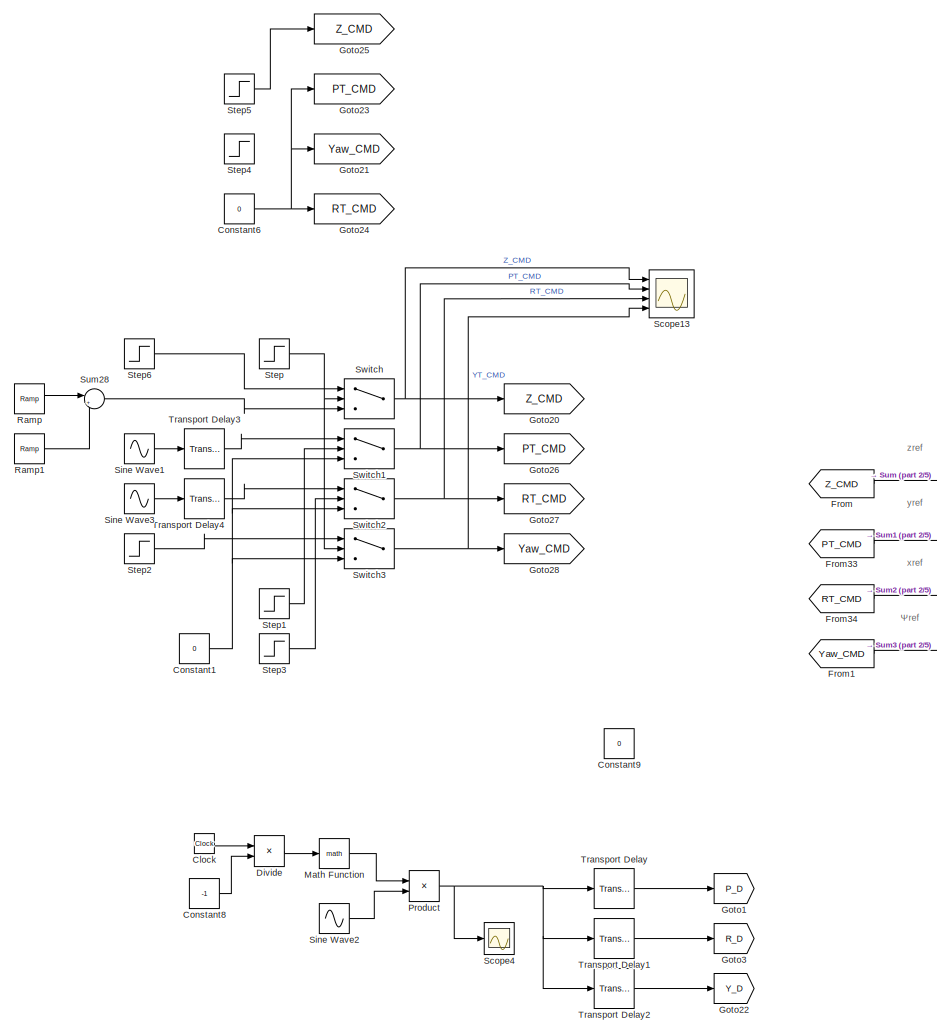
[diagram: root canvas - part 1/5, top left region]
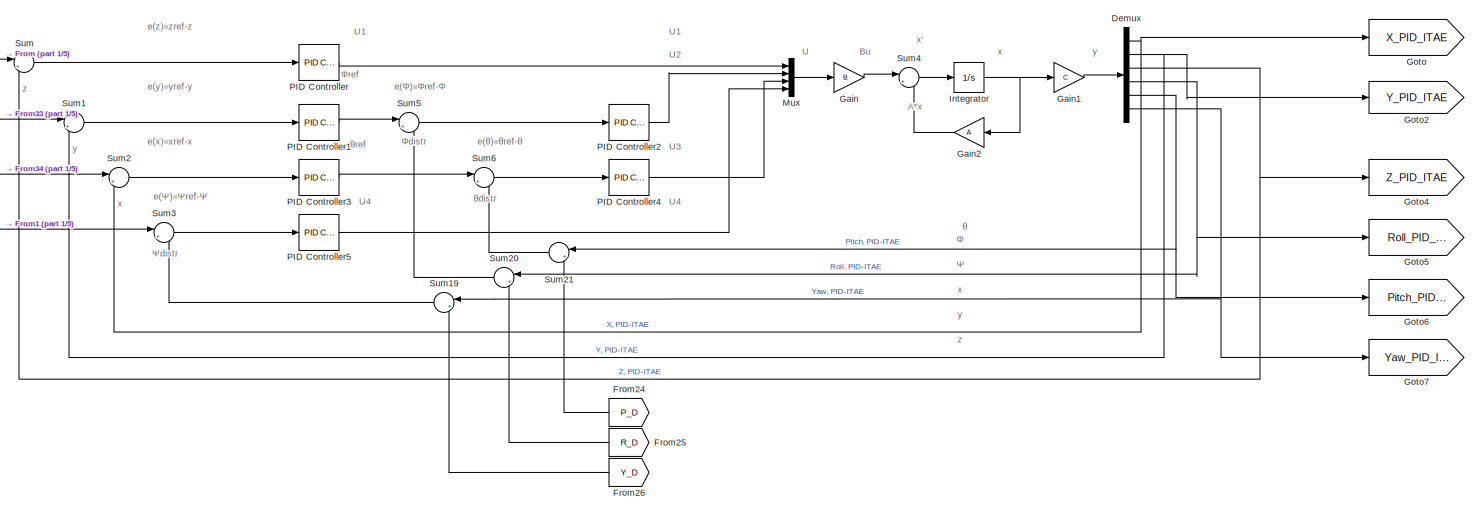
[diagram: root canvas - part 2/5, top center region]
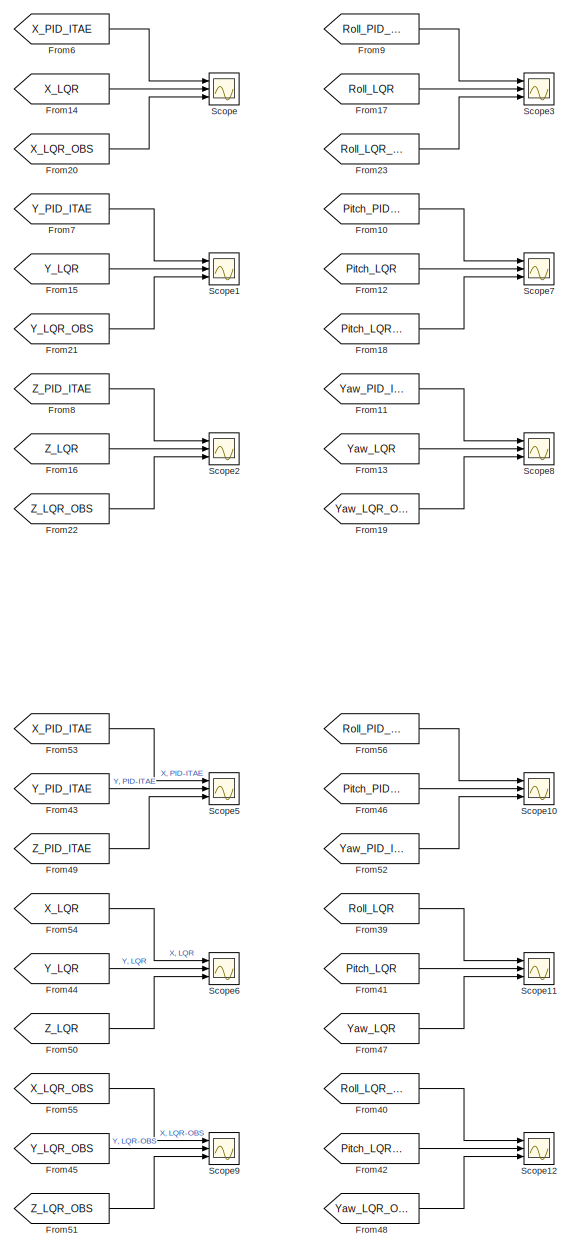
[diagram: root canvas - part 3/5, middle right region]
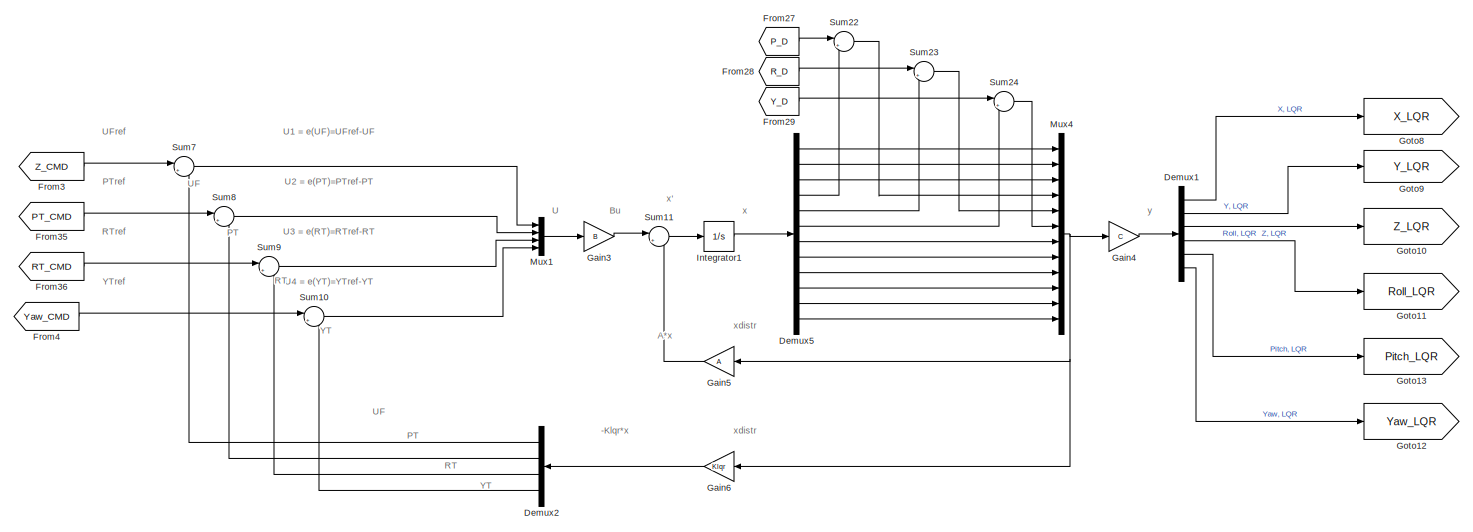
[diagram: root canvas - part 4/5, central region]
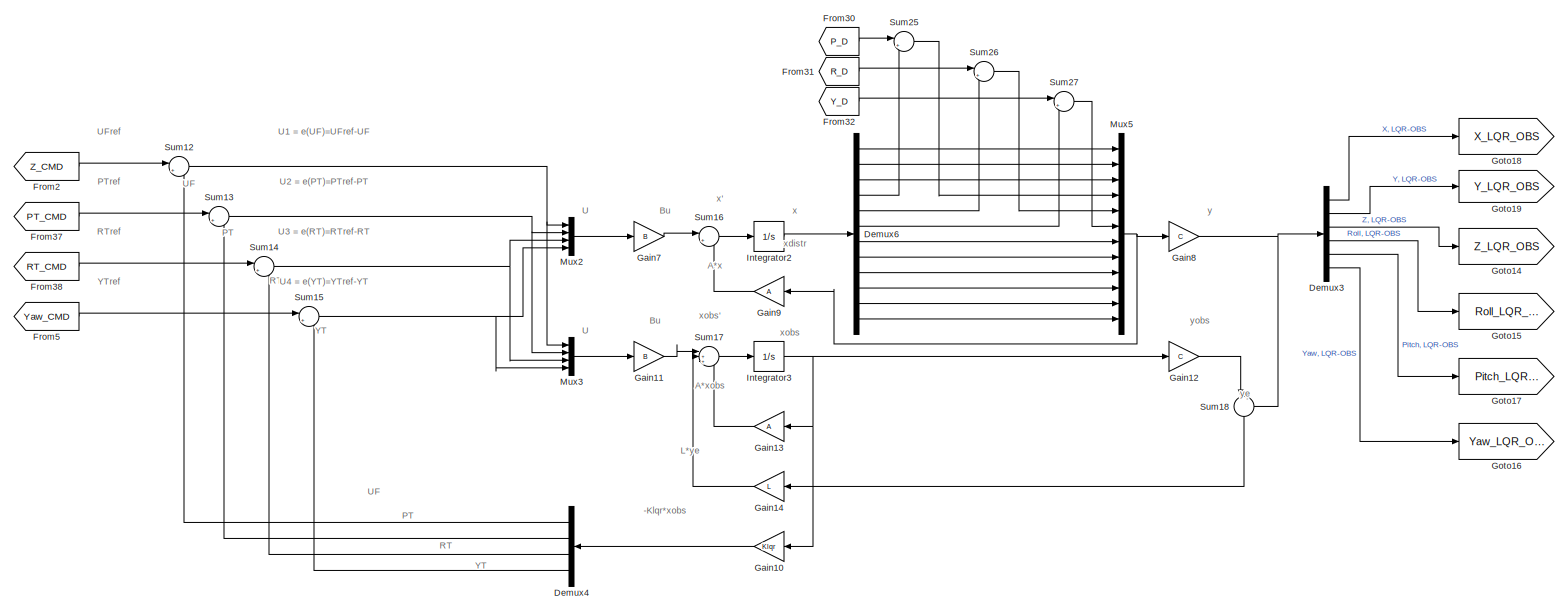
[diagram: root canvas - part 5/5, bottom center region]
MODEL slx_bced7e420a27
KIND model
CONFIG AbsTol = auto
CONFIG EnableMultiTasking = off
CONFIG FixedStep = auto
CONFIG MaxStep = auto
CONFIG MinStep = auto
CONFIG RelTol = 1e-3
CONFIG SampleTimeConstraint = Unconstrained
CONFIG SolverName = VariableStepAuto
CONFIG StartTime = 0.0
CONFIG StopTime = 130
BLOCK [Clock] Clock
BLOCK [Constant] Constant1
  Value = 0
BLOCK [Constant] Constant6
  Commented = on
  Value = 0
BLOCK [Constant] Constant8
  SampleTime = -1
  Value = -1
BLOCK [Constant] Constant9
  Value = 0
BLOCK [Demux] Demux
  Outputs = 6
  Ports = [1, 6]
BLOCK [Demux] Demux1
  Outputs = 6
  Ports = [1, 6]
BLOCK [Demux] Demux2
  Ports = [1, 4]
BLOCK [Demux] Demux3
  Outputs = 6
  Ports = [1, 6]
BLOCK [Demux] Demux4
  Ports = [1, 4]
BLOCK [Demux] Demux5
  Outputs = 12
  Ports = [1, 12]
BLOCK [Demux] Demux6
  Outputs = 12
  Ports = [1, 12]
BLOCK [Product] Divide
  Inputs = */
  Ports = [2, 1]
BLOCK [From] From
  GotoTag = Z_CMD
BLOCK [From] From1
  GotoTag = Yaw_CMD
BLOCK [From] From10
  Commented = on
  GotoTag = Pitch_PID_ITAE
BLOCK [From] From11
  Commented = on
  GotoTag = Yaw_PID_ITAE
BLOCK [From] From12
  Commented = on
  GotoTag = Pitch_LQR
BLOCK [From] From13
  Commented = on
  GotoTag = Yaw_LQR
BLOCK [From] From14
  Commented = on
  GotoTag = X_LQR
BLOCK [From] From15
  Commented = on
  GotoTag = Y_LQR
BLOCK [From] From16
  Commented = on
  GotoTag = Z_LQR
BLOCK [From] From17
  Commented = on
  GotoTag = Roll_LQR
BLOCK [From] From18
  Commented = on
  GotoTag = Pitch_LQR_OBS
BLOCK [From] From19
  Commented = on
  GotoTag = Yaw_LQR_OBS
BLOCK [From] From2
  GotoTag = Z_CMD
BLOCK [From] From20
  Commented = on
  GotoTag = X_LQR_OBS
BLOCK [From] From21
  Commented = on
  GotoTag = Y_LQR_OBS
BLOCK [From] From22
  Commented = on
  GotoTag = Z_LQR_OBS
BLOCK [From] From23
  Commented = on
  GotoTag = Roll_LQR_OBS
BLOCK [From] From24
  GotoTag = P_D
BLOCK [From] From25
  GotoTag = R_D
BLOCK [From] From26
  GotoTag = Y_D
BLOCK [From] From27
  GotoTag = P_D
BLOCK [From] From28
  GotoTag = R_D
BLOCK [From] From29
  GotoTag = Y_D
BLOCK [From] From3
  GotoTag = Z_CMD
BLOCK [From] From30
  GotoTag = P_D
BLOCK [From] From31
  GotoTag = R_D
BLOCK [From] From32
  GotoTag = Y_D
BLOCK [From] From33
  GotoTag = PT_CMD
BLOCK [From] From34
  GotoTag = RT_CMD
BLOCK [From] From35
  GotoTag = PT_CMD
BLOCK [From] From36
  GotoTag = RT_CMD
BLOCK [From] From37
  GotoTag = PT_CMD
BLOCK [From] From38
  GotoTag = RT_CMD
BLOCK [From] From39
  GotoTag = Roll_LQR
BLOCK [From] From4
  GotoTag = Yaw_CMD
BLOCK [From] From40
  GotoTag = Roll_LQR_OBS
BLOCK [From] From41
  GotoTag = Pitch_LQR
BLOCK [From] From42
  GotoTag = Pitch_LQR_OBS
BLOCK [From] From43
  GotoTag = Y_PID_ITAE
BLOCK [From] From44
  GotoTag = Y_LQR
BLOCK [From] From45
  GotoTag = Y_LQR_OBS
BLOCK [From] From46
  GotoTag = Pitch_PID_ITAE
BLOCK [From] From47
  GotoTag = Yaw_LQR
BLOCK [From] From48
  GotoTag = Yaw_LQR_OBS
BLOCK [From] From49
  GotoTag = Z_PID_ITAE
BLOCK [From] From5
  GotoTag = Yaw_CMD
BLOCK [From] From50
  GotoTag = Z_LQR
BLOCK [From] From51
  GotoTag = Z_LQR_OBS
BLOCK [From] From52
  GotoTag = Yaw_PID_ITAE
BLOCK [From] From53
  GotoTag = X_PID_ITAE
BLOCK [From] From54
  GotoTag = X_LQR
BLOCK [From] From55
  GotoTag = X_LQR_OBS
BLOCK [From] From56
  GotoTag = Roll_PID_ITAE
BLOCK [From] From6
  Commented = on
  GotoTag = X_PID_ITAE
BLOCK [From] From7
  Commented = on
  GotoTag = Y_PID_ITAE
BLOCK [From] From8
  Commented = on
  GotoTag = Z_PID_ITAE
BLOCK [From] From9
  Commented = on
  GotoTag = Roll_PID_ITAE
BLOCK [Gain] Gain
  AttributesFormatString = State-Space B*u
  Gain = B
  Multiplication = Matrix(K*u)
BLOCK [Gain] Gain1
  AttributesFormatString = State-Space C*x
  Gain = C
  Multiplication = Matrix(K*u)
BLOCK [Gain] Gain10
  AttributesFormatString = LQR Feedback Gain,\nAugmented States
  Gain = Klqr
  Multiplication = Matrix(K*u)
BLOCK [Gain] Gain11
  AttributesFormatString = State-Space B*u
  Gain = B
  Multiplication = Matrix(K*u)
BLOCK [Gain] Gain12
  AttributesFormatString = Augmented\nState-Space C*x
  Gain = C
  Multiplication = Matrix(K*u)
BLOCK [Gain] Gain13
  AttributesFormatString = Augmented\nState-Space A*x
  Gain = A
  Multiplication = Matrix(K*u)
BLOCK [Gain] Gain14
  AttributesFormatString = L*y_e
  Gain = L
  Multiplication = Matrix(K*u)
BLOCK [Gain] Gain2
  AttributesFormatString = State-Space A*x
  Gain = A
  Multiplication = Matrix(K*u)
BLOCK [Gain] Gain3
  AttributesFormatString = State-Space B*u
  Gain = B
  Multiplication = Matrix(K*u)
BLOCK [Gain] Gain4
  AttributesFormatString = State-Space C*x
  Gain = C
  Multiplication = Matrix(K*u)
BLOCK [Gain] Gain5
  AttributesFormatString = State-Space A*x
  Gain = A
  Multiplication = Matrix(K*u)
BLOCK [Gain] Gain6
  AttributesFormatString = LQR Feeback Gain
  Gain = Klqr
  Multiplication = Matrix(K*u)
BLOCK [Gain] Gain7
  AttributesFormatString = State-Space B*u
  Gain = B
  Multiplication = Matrix(K*u)
BLOCK [Gain] Gain8
  AttributesFormatString = State-Space C*x
  Gain = C
  Multiplication = Matrix(K*u)
BLOCK [Gain] Gain9
  AttributesFormatString = State-Space A*x
  Gain = A
  Multiplication = Matrix(K*u)
BLOCK [Goto] Goto
  GotoTag = X_PID_ITAE
BLOCK [Goto] Goto1
  GotoTag = P_D
BLOCK [Goto] Goto10
  GotoTag = Z_LQR
BLOCK [Goto] Goto11
  GotoTag = Roll_LQR
BLOCK [Goto] Goto12
  GotoTag = Yaw_LQR
BLOCK [Goto] Goto13
  GotoTag = Pitch_LQR
BLOCK [Goto] Goto14
  GotoTag = Z_LQR_OBS
BLOCK [Goto] Goto15
  GotoTag = Roll_LQR_OBS
BLOCK [Goto] Goto16
  GotoTag = Yaw_LQR_OBS
BLOCK [Goto] Goto17
  GotoTag = Pitch_LQR_OBS
BLOCK [Goto] Goto18
  GotoTag = X_LQR_OBS
BLOCK [Goto] Goto19
  GotoTag = Y_LQR_OBS
BLOCK [Goto] Goto2
  GotoTag = Y_PID_ITAE
BLOCK [Goto] Goto20
  GotoTag = Z_CMD
BLOCK [Goto] Goto21
  Commented = on
  GotoTag = Yaw_CMD
BLOCK [Goto] Goto22
  GotoTag = Y_D
BLOCK [Goto] Goto23
  Commented = on
  GotoTag = PT_CMD
BLOCK [Goto] Goto24
  Commented = on
  GotoTag = RT_CMD
BLOCK [Goto] Goto25
  Commented = on
  GotoTag = Z_CMD
BLOCK [Goto] Goto26
  GotoTag = PT_CMD
BLOCK [Goto] Goto27
  GotoTag = RT_CMD
BLOCK [Goto] Goto28
  GotoTag = Yaw_CMD
BLOCK [Goto] Goto3
  GotoTag = R_D
BLOCK [Goto] Goto4
  GotoTag = Z_PID_ITAE
BLOCK [Goto] Goto5
  GotoTag = Roll_PID_ITAE
BLOCK [Goto] Goto6
  GotoTag = Pitch_PID_ITAE
BLOCK [Goto] Goto7
  GotoTag = Yaw_PID_ITAE
BLOCK [Goto] Goto8
  GotoTag = X_LQR
BLOCK [Goto] Goto9
  GotoTag = Y_LQR
BLOCK [Integrator] Integrator
  AttributesFormatString = Extract Current States
  Ports = [1, 1]
BLOCK [Integrator] Integrator1
  AttributesFormatString = Extract Current States
  Ports = [1, 1]
BLOCK [Integrator] Integrator2
  AttributesFormatString = Extract Current States
  Ports = [1, 1]
BLOCK [Integrator] Integrator3
  AttributesFormatString = Extract Current\nAugmented States
  Ports = [1, 1]
BLOCK [Math] Math Function
  Ports = [1, 1]
BLOCK [Mux] Mux
  DisplayOption = bar
  Ports = [4, 1]
BLOCK [Mux] Mux1
  DisplayOption = bar
  Ports = [4, 1]
BLOCK [Mux] Mux2
  DisplayOption = bar
  Ports = [4, 1]
BLOCK [Mux] Mux3
  DisplayOption = bar
  Ports = [4, 1]
BLOCK [Mux] Mux4
  DisplayOption = bar
  Inputs = 12
  Ports = [12, 1]
BLOCK [Mux] Mux5
  DisplayOption = bar
  Inputs = 12
  Ports = [12, 1]
BLOCK [Reference] PID Controller  REF=slpidlib/PID Controller
  AttributesFormatString = U1 Controller
  Ports = [1, 1]
  SourceBlock = slpidlib/PID Controller
  SourceProductBaseCode = SL
  SourceType = PID 1dof
BLOCK [Reference] PID Controller1  REF=slpidlib/PID Controller
  AttributesFormatString = Φref Generation
  Ports = [1, 1]
  SourceBlock = slpidlib/PID Controller
  SourceProductBaseCode = SL
  SourceType = PID 1dof
BLOCK [Reference] PID Controller2  REF=slpidlib/PID Controller
  AttributesFormatString = U2 Controller
  Ports = [1, 1]
  SourceBlock = slpidlib/PID Controller
  SourceProductBaseCode = SL
  SourceType = PID 1dof
BLOCK [Reference] PID Controller3  REF=slpidlib/PID Controller
  AttributesFormatString = θref Generation
  Ports = [1, 1]
  SourceBlock = slpidlib/PID Controller
  SourceProductBaseCode = SL
  SourceType = PID 1dof
BLOCK [Reference] PID Controller4  REF=slpidlib/PID Controller
  AttributesFormatString = U3 Controller
  Ports = [1, 1]
  SourceBlock = slpidlib/PID Controller
  SourceProductBaseCode = SL
  SourceType = PID 1dof
BLOCK [Reference] PID Controller5  REF=slpidlib/PID Controller
  AttributesFormatString = U4 Controller
  Ports = [1, 1]
  SourceBlock = slpidlib/PID Controller
  SourceProductBaseCode = SL
  SourceType = PID 1dof
BLOCK [Product] Product
  Ports = [2, 1]
BLOCK [Reference] Ramp  REF=simulink/Sources/Ramp
  Ports = [0, 1]
  SourceBlock = simulink/Sources/Ramp
  SourceProductBaseCode = SL
  SourceType = Ramp
BLOCK [Reference] Ramp1  REF=simulink/Sources/Ramp
  Ports = [0, 1]
  SourceBlock = simulink/Sources/Ramp
  SourceProductBaseCode = SL
  SourceType = Ramp
BLOCK [Scope] Scope
  AttributesFormatString = Quadcopter X-Position\nOutputs
  Commented = on
  Floating = off
  NumInputPorts = 3
  Ports = [3]
  ScopeSpecificationString = Simulink.scopes.TimeScopeBlockCfg('CurrentConfiguration', extmgr.ConfigurationSet(extmgr.Configuration('Core','General UI',true,'FigureColor',[1 1 1]),extmgr.Configuration('Core','Source UI',true),extmgr.Configuration('Sources','WiredSimulink',true,'DataLoggingVariableName','ScopeData1'),extmgr.Configuration('Visuals','Time Domain',true,'SerializedDisplays',{struct('MinYLimReal','-0.00000000000000...<+1971ch>
BLOCK [Scope] Scope1
  AttributesFormatString = Quadcopter Y-Position\nOutputs
  Commented = on
  Floating = off
  NumInputPorts = 3
  Ports = [3]
  ScopeSpecificationString = Simulink.scopes.TimeScopeBlockCfg('CurrentConfiguration', extmgr.ConfigurationSet(extmgr.Configuration('Core','General UI',true,'FigureColor',[1 1 1]),extmgr.Configuration('Core','Source UI',true),extmgr.Configuration('Sources','WiredSimulink',true),extmgr.Configuration('Visuals','Time Domain',true,'SerializedDisplays',{struct('MinYLimReal','-557468517.56897','MaxYLimReal','493910341.92572','YLabe...<+1906ch>
BLOCK [Scope] Scope10
  AttributesFormatString = Quadcopter\nPID-ITAE Euler Angles
  Floating = off
  NumInputPorts = 3
  Ports = [3]
  ScopeSpecificationString = Simulink.scopes.TimeScopeBlockCfg('CurrentConfiguration', extmgr.ConfigurationSet(extmgr.Configuration('Core','General UI',true,'FigureColor',[1 1 1]),extmgr.Configuration('Core','Source UI',true),extmgr.Configuration('Sources','WiredSimulink',true,'DataLoggingVariableName','ScopeData2'),extmgr.Configuration('Visuals','Time Domain',true,'SerializedDisplays',{struct('MinYLimReal','-3.1416','MaxYLim...<+1930ch>
BLOCK [Scope] Scope11
  AttributesFormatString = Quadcopter\nLQR Euler Angles
  Floating = off
  NumInputPorts = 3
  Ports = [3]
  ScopeSpecificationString = Simulink.scopes.TimeScopeBlockCfg('CurrentConfiguration', extmgr.ConfigurationSet(extmgr.Configuration('Core','General UI',true,'FigureColor',[1 1 1]),extmgr.Configuration('Core','Source UI',true),extmgr.Configuration('Sources','WiredSimulink',true,'DataLoggingVariableName','ScopeData3'),extmgr.Configuration('Visuals','Time Domain',true,'SerializedDisplays',{struct('MinYLimReal','-0.8965','MaxYLim...<+1907ch>
BLOCK [Scope] Scope12
  AttributesFormatString = Quadcopter LQR-PI\n(Observer) Euler Angles
  Floating = off
  NumInputPorts = 3
  Ports = [3]
  ScopeSpecificationString = Simulink.scopes.TimeScopeBlockCfg('CurrentConfiguration', extmgr.ConfigurationSet(extmgr.Configuration('Core','General UI',true,'FigureColor',[1 1 1]),extmgr.Configuration('Core','Source UI',true),extmgr.Configuration('Sources','WiredSimulink',true,'DataLoggingVariableName','ScopeData4'),extmgr.Configuration('Visuals','Time Domain',true,'SerializedDisplays',{struct('MinYLimReal','-0.8965','MaxYLim...<+1919ch>
BLOCK [Scope] Scope13
  AttributesFormatString = Quadcopter\nReference Commands
  Floating = off
  NumInputPorts = 4
  Ports = [4]
  ScopeSpecificationString = Simulink.scopes.TimeScopeBlockCfg('CurrentConfiguration', extmgr.ConfigurationSet(extmgr.Configuration('Core','General UI',true,'FigureColor',[1 1 1]),extmgr.Configuration('Core','Source UI',true),extmgr.Configuration('Sources','WiredSimulink',true,'DataLoggingVariableName','ScopeData1'),extmgr.Configuration('Visuals','Time Domain',true,'SerializedDisplays',{struct('MinYLimReal','-6.625','MaxYLimR...<+2025ch>
BLOCK [Scope] Scope2
  AttributesFormatString = Quadcopter Z-Position\nOutputs
  Commented = on
  Floating = off
  NumInputPorts = 3
  Ports = [3]
  ScopeSpecificationString = Simulink.scopes.TimeScopeBlockCfg('CurrentConfiguration', extmgr.ConfigurationSet(extmgr.Configuration('Core','General UI',true,'FigureColor',[1 1 1]),extmgr.Configuration('Core','Source UI',true),extmgr.Configuration('Sources','WiredSimulink',true,'DataLoggingVariableName','ScopeData2'),extmgr.Configuration('Visuals','Time Domain',true,'SerializedDisplays',{struct('MinYLimReal','-1.59788','MaxYLi...<+1887ch>
BLOCK [Scope] Scope3
  AttributesFormatString = Quadcopter Roll Angle\nOutputs
  Commented = on
  Floating = off
  NumInputPorts = 3
  Ports = [3]
  ScopeSpecificationString = Simulink.scopes.TimeScopeBlockCfg('CurrentConfiguration', extmgr.ConfigurationSet(extmgr.Configuration('Core','General UI',true,'FigureColor',[1 1 1]),extmgr.Configuration('Core','Source UI',true),extmgr.Configuration('Sources','WiredSimulink',true,'DataLoggingVariableName','ScopeData3'),extmgr.Configuration('Visuals','Time Domain',true,'SerializedDisplays',{struct('MinYLimReal','-0.00000000000000...<+1988ch>
BLOCK [Scope] Scope4
  Floating = off
  NumInputPorts = 1
  Ports = [1]
  ScopeSpecificationString = Simulink.scopes.TimeScopeBlockCfg('CurrentConfiguration', extmgr.ConfigurationSet(extmgr.Configuration('Core','General UI',true,'FigureColor',[1 1 1]),extmgr.Configuration('Core','Source UI',true),extmgr.Configuration('Sources','WiredSimulink',true,'DataLoggingVariableName','ScopeData1'),extmgr.Configuration('Visuals','Time Domain',true,'SerializedDisplays',{struct('MinYLimReal','-0.19985','MaxYLi...<+1939ch>
BLOCK [Scope] Scope5
  AttributesFormatString = Quadcopter\nPID-ITAE Positions
  Floating = off
  NumInputPorts = 3
  Ports = [3]
  ScopeSpecificationString = Simulink.scopes.TimeScopeBlockCfg('CurrentConfiguration', extmgr.ConfigurationSet(extmgr.Configuration('Core','General UI',true,'FigureColor',[1 1 1]),extmgr.Configuration('Core','Source UI',true),extmgr.Configuration('Sources','WiredSimulink',true,'DataLoggingVariableName','ScopeData5'),extmgr.Configuration('Visuals','Time Domain',true,'SerializedDisplays',{struct('MinYLimReal','-8.04007','MaxYLi...<+1919ch>
BLOCK [Scope] Scope6
  AttributesFormatString = Quadcopter LQR\nPositions
  Floating = off
  NumInputPorts = 3
  Ports = [3]
  ScopeSpecificationString = Simulink.scopes.TimeScopeBlockCfg('CurrentConfiguration', extmgr.ConfigurationSet(extmgr.Configuration('Core','General UI',true,'FigureColor',[1 1 1]),extmgr.Configuration('Core','Source UI',true),extmgr.Configuration('Sources','WiredSimulink',true,'DataLoggingVariableName','ScopeData6'),extmgr.Configuration('Visuals','Time Domain',true,'SerializedDisplays',{struct('MinYLimReal','-6.85432','MaxYLi...<+1904ch>
BLOCK [Scope] Scope7
  AttributesFormatString = Quadcopter Pitch Angle\nOutputs
  Commented = on
  Floating = off
  NumInputPorts = 3
  Ports = [3]
  ScopeSpecificationString = Simulink.scopes.TimeScopeBlockCfg('CurrentConfiguration', extmgr.ConfigurationSet(extmgr.Configuration('Core','General UI',true,'FigureColor',[1 1 1]),extmgr.Configuration('Core','Source UI',true),extmgr.Configuration('Sources','WiredSimulink',true,'DataLoggingVariableName','ScopeData7'),extmgr.Configuration('Visuals','Time Domain',true,'SerializedDisplays',{struct('MinYLimReal','-0.00000000000000...<+1991ch>
BLOCK [Scope] Scope8
  AttributesFormatString = Quadcopter Yaw Angle\nOutputs
  Commented = on
  Floating = off
  NumInputPorts = 3
  Ports = [3]
  ScopeSpecificationString = Simulink.scopes.TimeScopeBlockCfg('CurrentConfiguration', extmgr.ConfigurationSet(extmgr.Configuration('Core','General UI',true,'FigureColor',[1 1 1]),extmgr.Configuration('Core','Source UI',true),extmgr.Configuration('Sources','WiredSimulink',true,'DataLoggingVariableName','ScopeData8'),extmgr.Configuration('Visuals','Time Domain',true,'SerializedDisplays',{struct('MinYLimReal','-0.84519','MaxYLi...<+1889ch>
BLOCK [Scope] Scope9
  AttributesFormatString = Quadcopter LQR-PI\n(Observer) Positions
  Floating = off
  NumInputPorts = 3
  Ports = [3]
  ScopeSpecificationString = Simulink.scopes.TimeScopeBlockCfg('CurrentConfiguration', extmgr.ConfigurationSet(extmgr.Configuration('Core','General UI',true,'FigureColor',[1 1 1]),extmgr.Configuration('Core','Source UI',true),extmgr.Configuration('Sources','WiredSimulink',true,'DataLoggingVariableName','ScopeData7'),extmgr.Configuration('Visuals','Time Domain',true,'SerializedDisplays',{struct('MinYLimReal','-6.67377','MaxYLi...<+1916ch>
BLOCK [Sin] Sine Wave1
  Amplitude = 5
  Frequency = 0.3142
  Ports = [0, 1]
  SampleTime = 0
BLOCK [Sin] Sine Wave2
  Amplitude = 0.4
  Bias = 0.2
  Frequency = 62.83185
  Ports = [0, 1]
  SampleTime = 0
BLOCK [Sin] Sine Wave3
  Amplitude = 5
  Frequency = 0.3142
  Phase = pi/2
  Ports = [0, 1]
  SampleTime = 0
BLOCK [Step] Step
  After = 0
  Before = 1
  SampleTime = 0
  Time = 58.46+40
BLOCK [Step] Step1
  After = 0
  Before = 1
  SampleTime = 0
  Time = 94.2
BLOCK [Step] Step2
  After = 0.25
  SampleTime = 0
BLOCK [Step] Step3
  After = 0
  Before = 1
  SampleTime = 0
  Time = 99.285
BLOCK [Step] Step4
  After = 5
  Commented = on
  SampleTime = 0
  Time = 0
BLOCK [Step] Step5
  After = 8
  Commented = on
  SampleTime = 0
BLOCK [Step] Step6
  After = 8
  SampleTime = 0
  Time = 0
BLOCK [Sum] Sum
  Inputs = |+-
  Ports = [2, 1]
BLOCK [Sum] Sum1
  Inputs = |+-
  Ports = [2, 1]
BLOCK [Sum] Sum10
  Inputs = |+-
  Ports = [2, 1]
BLOCK [Sum] Sum11
  Inputs = |++
  Ports = [2, 1]
BLOCK [Sum] Sum12
  Inputs = |+-
  Ports = [2, 1]
BLOCK [Sum] Sum13
  Inputs = |+-
  Ports = [2, 1]
BLOCK [Sum] Sum14
  Inputs = |+-
  Ports = [2, 1]
BLOCK [Sum] Sum15
  Inputs = |+-
  Ports = [2, 1]
BLOCK [Sum] Sum16
  Inputs = |++
  Ports = [2, 1]
BLOCK [Sum] Sum17
  Inputs = |+++
  Ports = [3, 1]
BLOCK [Sum] Sum18
  Inputs = |-+
  NameLocation = left
  Ports = [2, 1]
BLOCK [Sum] Sum19
  Inputs = |++
  Ports = [2, 1]
BLOCK [Sum] Sum2
  Inputs = |++
  Ports = [2, 1]
BLOCK [Sum] Sum20
  Inputs = |++
  Ports = [2, 1]
BLOCK [Sum] Sum21
  Inputs = |++
  Ports = [2, 1]
BLOCK [Sum] Sum22
  Inputs = |++
  Ports = [2, 1]
BLOCK [Sum] Sum23
  Inputs = |++
  Ports = [2, 1]
BLOCK [Sum] Sum24
  Inputs = |++
  Ports = [2, 1]
BLOCK [Sum] Sum25
  Inputs = |++
  Ports = [2, 1]
BLOCK [Sum] Sum26
  Inputs = |++
  Ports = [2, 1]
BLOCK [Sum] Sum27
  Inputs = |++
  Ports = [2, 1]
BLOCK [Sum] Sum28
  Inputs = |++
  Ports = [2, 1]
BLOCK [Sum] Sum3
  Inputs = |+-
  Ports = [2, 1]
BLOCK [Sum] Sum4
  Inputs = |++
  Ports = [2, 1]
BLOCK [Sum] Sum5
  Inputs = |+-
  Ports = [2, 1]
BLOCK [Sum] Sum6
  Inputs = |+-
  Ports = [2, 1]
BLOCK [Sum] Sum7
  Inputs = |+-
  Ports = [2, 1]
BLOCK [Sum] Sum8
  Inputs = |+-
  Ports = [2, 1]
BLOCK [Sum] Sum9
  Inputs = |+-
  Ports = [2, 1]
BLOCK [Switch] Switch
  Criteria = u2 > Threshold
  InputSameDT = off
  SaturateOnIntegerOverflow = off
BLOCK [Switch] Switch1
  Criteria = u2 > Threshold
  InputSameDT = off
  SaturateOnIntegerOverflow = off
BLOCK [Switch] Switch2
  Criteria = u2 > Threshold
  InputSameDT = off
  SaturateOnIntegerOverflow = off
BLOCK [Switch] Switch3
  Criteria = u2 > Threshold
  InputSameDT = off
  SaturateOnIntegerOverflow = off
BLOCK [TransportDelay] Transport Delay
  DelayTime = 5+20
  Ports = [1, 1]
BLOCK [TransportDelay] Transport Delay1
  DelayTime = 10+20
  Ports = [1, 1]
BLOCK [TransportDelay] Transport Delay2
  DelayTime = 7
  Ports = [1, 1]
BLOCK [TransportDelay] Transport Delay3
  DelayTime = 12.5
  Ports = [1, 1]
BLOCK [TransportDelay] Transport Delay4
  DelayTime = 12.5
  Ports = [1, 1]
ANNOTATION (root): Ψ
ANNOTATION (root): Ψ distr
ANNOTATION (root): Ψ ref
ANNOTATION (root): U 4
ANNOTATION (root): x
ANNOTATION (root): y
ANNOTATION (root): z
ANNOTATION (root): Φ
ANNOTATION (root): Φ distr
ANNOTATION (root): Φ ref
ANNOTATION (root): θ
ANNOTATION (root): θ distr
ANNOTATION (root): θ ref
ANNOTATION (root): - K lqr *x
ANNOTATION (root): - K lqr *x obs
ANNOTATION (root): A*x
ANNOTATION (root): A*x obs
ANNOTATION (root): Bu
ANNOTATION (root): L*y e
ANNOTATION (root): PT
ANNOTATION (root): PT ref
ANNOTATION (root): RT
ANNOTATION (root): RT ref
ANNOTATION (root): U
ANNOTATION (root): U 3 = e(RT)=RT ref -RT
ANNOTATION (root): U 1
ANNOTATION (root): U 1 = e(UF)=UF ref -UF
ANNOTATION (root): U 2
ANNOTATION (root): U 2 = e(PT)=PT ref -PT
ANNOTATION (root): U 3
ANNOTATION (root): U 4 = e(YT)=YT ref -YT
ANNOTATION (root): UF
ANNOTATION (root): UF ref
ANNOTATION (root): YT
ANNOTATION (root): YT ref
ANNOTATION (root): e( Ψ )= Ψ ref - Ψ
ANNOTATION (root): e( Φ )= Φ ref - Φ
ANNOTATION (root): e( θ )= θ ref - θ
ANNOTATION (root): e(x)=x ref -x
ANNOTATION (root): e(y)=y ref -y
ANNOTATION (root): e(z)=z ref -z
ANNOTATION (root): x'
ANNOTATION (root): x distr
ANNOTATION (root): x obs
ANNOTATION (root): x obs '
ANNOTATION (root): x ref
ANNOTATION (root): y e
ANNOTATION (root): y obs
ANNOTATION (root): y ref
ANNOTATION (root): z ref
LINE Clock:1 -> Divide:1
NET Constant1:1 -> Switch1:3, Switch2:3, Switch3:3
NET Constant6:1 -> Goto21:1, Goto23:1, Goto24:1
LINE Constant8:1 -> Divide:2
LINE Demux1:1 -> Goto8:1
LINE Demux1:2 -> Goto9:1
LINE Demux1:3 -> Goto10:1
LINE Demux1:4 -> Goto11:1
LINE Demux1:5 -> Goto13:1
LINE Demux1:6 -> Goto12:1
LINE Demux2:1 -> Sum7:2
LINE Demux2:2 -> Sum8:2
LINE Demux2:3 -> Sum9:2
LINE Demux2:4 -> Sum10:2
LINE Demux3:1 -> Goto18:1
LINE Demux3:2 -> Goto19:1
LINE Demux3:3 -> Goto14:1
LINE Demux3:4 -> Goto15:1
LINE Demux3:5 -> Goto17:1
LINE Demux3:6 -> Goto16:1
LINE Demux4:1 -> Sum12:2
LINE Demux4:2 -> Sum13:2
LINE Demux4:3 -> Sum14:2
LINE Demux4:4 -> Sum15:2
LINE Demux5:1 -> Mux4:1
LINE Demux5:10 -> Mux4:10
LINE Demux5:11 -> Mux4:11
LINE Demux5:12 -> Mux4:12
LINE Demux5:2 -> Mux4:2
LINE Demux5:3 -> Mux4:3
LINE Demux5:4 -> Sum22:2
LINE Demux5:5 -> Sum23:2
LINE Demux5:6 -> Sum24:2
LINE Demux5:7 -> Mux4:7
LINE Demux5:8 -> Mux4:8
LINE Demux5:9 -> Mux4:9
LINE Demux6:1 -> Mux5:1
LINE Demux6:10 -> Mux5:10
LINE Demux6:11 -> Mux5:11
LINE Demux6:12 -> Mux5:12
LINE Demux6:2 -> Mux5:2
LINE Demux6:3 -> Mux5:3
LINE Demux6:4 -> Sum25:2
LINE Demux6:5 -> Sum26:2
LINE Demux6:6 -> Sum27:2
LINE Demux6:7 -> Mux5:7
LINE Demux6:8 -> Mux5:8
LINE Demux6:9 -> Mux5:9
NET Demux:1 -> Goto:1, Sum2:2
NET Demux:2 -> Goto2:1, Sum1:2
NET Demux:3 -> Goto4:1, Sum:2
NET Demux:4 -> Goto5:1, Sum20:1
NET Demux:5 -> Goto6:1, Sum21:1
NET Demux:6 -> Goto7:1, Sum19:1
LINE Divide:1 -> Math Function:1
LINE From10:1 -> Scope7:1
LINE From11:1 -> Scope8:1
LINE From12:1 -> Scope7:2
LINE From13:1 -> Scope8:2
LINE From14:1 -> Scope:2
LINE From15:1 -> Scope1:2
LINE From16:1 -> Scope2:2
LINE From17:1 -> Scope3:2
LINE From18:1 -> Scope7:3
LINE From19:1 -> Scope8:3
LINE From1:1 -> Sum3:1
LINE From20:1 -> Scope:3
LINE From21:1 -> Scope1:3
LINE From22:1 -> Scope2:3
LINE From23:1 -> Scope3:3
LINE From24:1 -> Sum21:2
LINE From25:1 -> Sum20:2
LINE From26:1 -> Sum19:2
LINE From27:1 -> Sum22:1
LINE From28:1 -> Sum23:1
LINE From29:1 -> Sum24:1
LINE From2:1 -> Sum12:1
LINE From30:1 -> Sum25:1
LINE From31:1 -> Sum26:1
LINE From32:1 -> Sum27:1
LINE From33:1 -> Sum1:1
LINE From34:1 -> Sum2:1
LINE From35:1 -> Sum8:1
LINE From36:1 -> Sum9:1
LINE From37:1 -> Sum13:1
LINE From38:1 -> Sum14:1
LINE From39:1 -> Scope11:1
LINE From3:1 -> Sum7:1
LINE From40:1 -> Scope12:1
LINE From41:1 -> Scope11:2
LINE From42:1 -> Scope12:2
LINE From43:1 -> Scope5:2
LINE From44:1 -> Scope6:2
LINE From45:1 -> Scope9:2
LINE From46:1 -> Scope10:2
LINE From47:1 -> Scope11:3
LINE From48:1 -> Scope12:3
LINE From49:1 -> Scope5:3
LINE From4:1 -> Sum10:1
LINE From50:1 -> Scope6:3
LINE From51:1 -> Scope9:3
LINE From52:1 -> Scope10:3
LINE From53:1 -> Scope5:1
LINE From54:1 -> Scope6:1
LINE From55:1 -> Scope9:1
LINE From56:1 -> Scope10:1
LINE From5:1 -> Sum15:1
LINE From6:1 -> Scope:1
LINE From7:1 -> Scope1:1
LINE From8:1 -> Scope2:1
LINE From9:1 -> Scope3:1
LINE From:1 -> Sum:1
LINE Gain10:1 -> Demux4:1
LINE Gain11:1 -> Sum17:1
LINE Gain12:1 -> Sum18:1
LINE Gain13:1 -> Sum17:3
LINE Gain14:1 -> Sum17:2
LINE Gain1:1 -> Demux:1
LINE Gain2:1 -> Sum4:2
LINE Gain3:1 -> Sum11:1
LINE Gain4:1 -> Demux1:1
LINE Gain5:1 -> Sum11:2
LINE Gain6:1 -> Demux2:1
LINE Gain7:1 -> Sum16:1
NET Gain8:1 -> Demux3:1, Sum18:2
LINE Gain9:1 -> Sum16:2
LINE Gain:1 -> Sum4:1
LINE Integrator1:1 -> Demux5:1
LINE Integrator2:1 -> Demux6:1
NET Integrator3:1 -> Gain10:1, Gain12:1, Gain13:1
NET Integrator:1 -> Gain1:1, Gain2:1
LINE Math Function:1 -> Product:1
LINE Mux1:1 -> Gain3:1
LINE Mux2:1 -> Gain7:1
LINE Mux3:1 -> Gain11:1
NET Mux4:1 -> Gain4:1, Gain5:1, Gain6:1
NET Mux5:1 -> Gain8:1, Gain9:1
LINE Mux:1 -> Gain:1
LINE PID Controller1:1 -> Sum5:1
LINE PID Controller2:1 -> Mux:2
LINE PID Controller3:1 -> Sum6:1
LINE PID Controller4:1 -> Mux:3
LINE PID Controller5:1 -> Mux:4
LINE PID Controller:1 -> Mux:1
NET Product:1 -> Scope4:1, Transport Delay1:1, Transport Delay2:1, Transport Delay:1
LINE Ramp1:1 -> Sum28:2
LINE Ramp:1 -> Sum28:1
LINE Sine Wave1:1 -> Transport Delay3:1
LINE Sine Wave2:1 -> Product:2
LINE Sine Wave3:1 -> Transport Delay4:1
LINE Step1:1 -> Switch1:2
LINE Step2:1 -> Switch3:1
LINE Step3:1 -> Switch2:2
LINE Step5:1 -> Goto25:1
LINE Step6:1 -> Switch:1
NET Step:1 -> Switch3:2, Switch:2
LINE Sum10:1 -> Mux1:4
LINE Sum11:1 -> Integrator1:1
NET Sum12:1 -> Mux2:1, Mux3:1
NET Sum13:1 -> Mux2:2, Mux3:2
NET Sum14:1 -> Mux2:3, Mux3:3
NET Sum15:1 -> Mux2:4, Mux3:4
LINE Sum16:1 -> Integrator2:1
LINE Sum17:1 -> Integrator3:1
LINE Sum18:1 -> Gain14:1
LINE Sum19:1 -> Sum3:2
LINE Sum1:1 -> PID Controller1:1
LINE Sum20:1 -> Sum5:2
LINE Sum21:1 -> Sum6:2
LINE Sum22:1 -> Mux4:4
LINE Sum23:1 -> Mux4:5
LINE Sum24:1 -> Mux4:6
LINE Sum25:1 -> Mux5:4
LINE Sum26:1 -> Mux5:5
LINE Sum27:1 -> Mux5:6
LINE Sum28:1 -> Switch:3
LINE Sum2:1 -> PID Controller3:1
LINE Sum3:1 -> PID Controller5:1
LINE Sum4:1 -> Integrator:1
LINE Sum5:1 -> PID Controller2:1
LINE Sum6:1 -> PID Controller4:1
LINE Sum7:1 -> Mux1:1
LINE Sum8:1 -> Mux1:2
LINE Sum9:1 -> Mux1:3
LINE Sum:1 -> PID Controller:1
NET Switch1:1 -> Goto26:1, Scope13:2
NET Switch2:1 -> Goto27:1, Scope13:3
NET Switch3:1 -> Goto28:1, Scope13:4
NET Switch:1 -> Goto20:1, Scope13:1
LINE Transport Delay1:1 -> Goto3:1
LINE Transport Delay2:1 -> Goto22:1
LINE Transport Delay3:1 -> Switch1:1
LINE Transport Delay4:1 -> Switch2:1
LINE Transport Delay:1 -> Goto1:1
note: NET lines group one-source signal fan-out (src -> all destinations, sorted); 1:1 wires keep LINE
